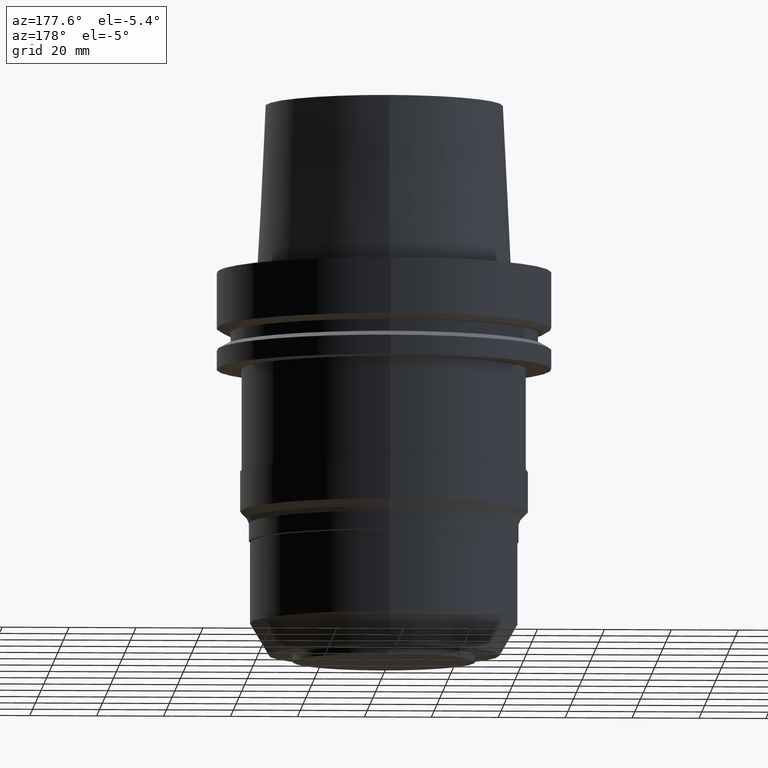
[diagram: clean part render]
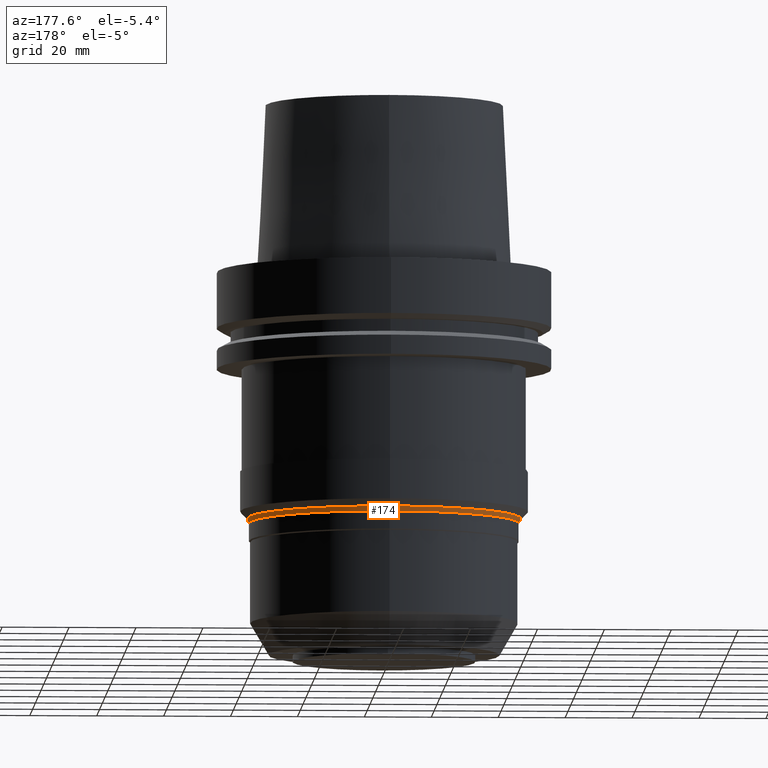
[diagram: same view with one face highlighted and labeled with its STEP entity id]
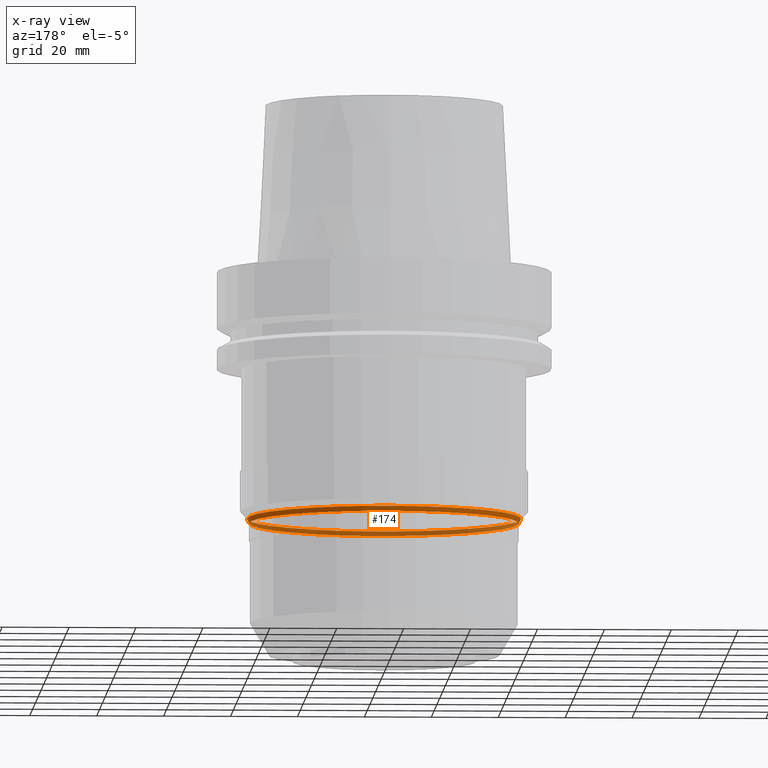
[diagram: x-ray of the same camera — body ghosted, the highlighted face saturated]
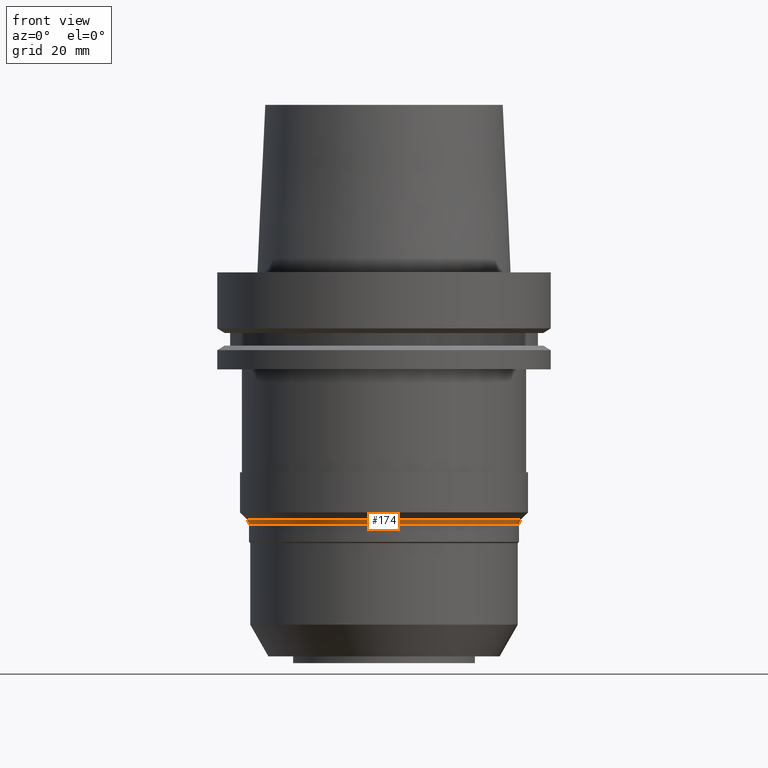
[diagram: same view with one face highlighted and labeled with its STEP entity id]
A machine part, auxiliary view. The second image highlights one B-rep face of the part: STEP entity #174.
The next image is the same camera in x-ray: the body ghosted, the highlighted face saturated — about 45% of this face is hidden behind the body in this view.
A second angle (front view) of the same face is appended — the face is thin or edge-on in the first view.
In plain terms, the highlighted conical surface has half-angle 22.5 deg.
Its self-contained STEP definition (entity closure, byte-faithful):
#145=EDGE_CURVE('Unnamed[1]',#322,#322,#323,.T.);
#171=EDGE_CURVE('Unnamed[1]',#362,#362,#363,.T.);
#174=ADVANCED_FACE('Unnamed[1]',(#366,#367),#368,.T.);
#322=VERTEX_POINT('',#540);
#323=CIRCLE('',#541,40.9357864376274);
#362=VERTEX_POINT('',#591);
#363=CIRCLE('',#592,40.3500000000003);
#366=FACE_BOUND('',#596,.T.);
#367=FACE_BOUND('',#597,.T.);
#368=CONICAL_SURFACE('',#598,40.6428932188139,0.392699081698825);
#540=CARTESIAN_POINT('',(4.51675540153905E-015,40.9357864376274,-73.7642135623724));
#541=AXIS2_PLACEMENT_3D('',#754,#755,#756);
#591=CARTESIAN_POINT('',(4.60335100716261E-015,40.3500000000003,-75.1784271247455));
#592=AXIS2_PLACEMENT_3D('',#798,#799,#800);
#596=EDGE_LOOP('',(#802));
#597=EDGE_LOOP('',(#803));
#598=AXIS2_PLACEMENT_3D('',#804,#805,#806);
#754=CARTESIAN_POINT('',(4.51675540153905E-015,9.03351080307811E-015,-73.7642135623724));
#755=DIRECTION('',(6.12323399573677E-017,1.22464679914739E-016,-1.0));
#756=DIRECTION('',(-1.23259516440766E-032,1.0,1.22464679914739E-016));
#798=CARTESIAN_POINT('',(4.60335100716261E-015,9.20670201432521E-015,-75.1784271247455));
#799=DIRECTION('',(6.12323399573677E-017,1.22464679914706E-016,-1.0));
#800=DIRECTION('',(-1.232595164408E-032,1.0,1.22464679914706E-016));
#802=ORIENTED_EDGE('',*,*,#171,.F.);
#803=ORIENTED_EDGE('',*,*,#145,.T.);
#804=CARTESIAN_POINT('',(4.56005320435083E-015,9.12010640870166E-015,-74.4713203435589));
#805=DIRECTION('',(-6.12323399573677E-017,-1.22464679914762E-016,1.0));
#806=DIRECTION('',(-1.23259516440783E-032,1.0,1.22464679914763E-016));